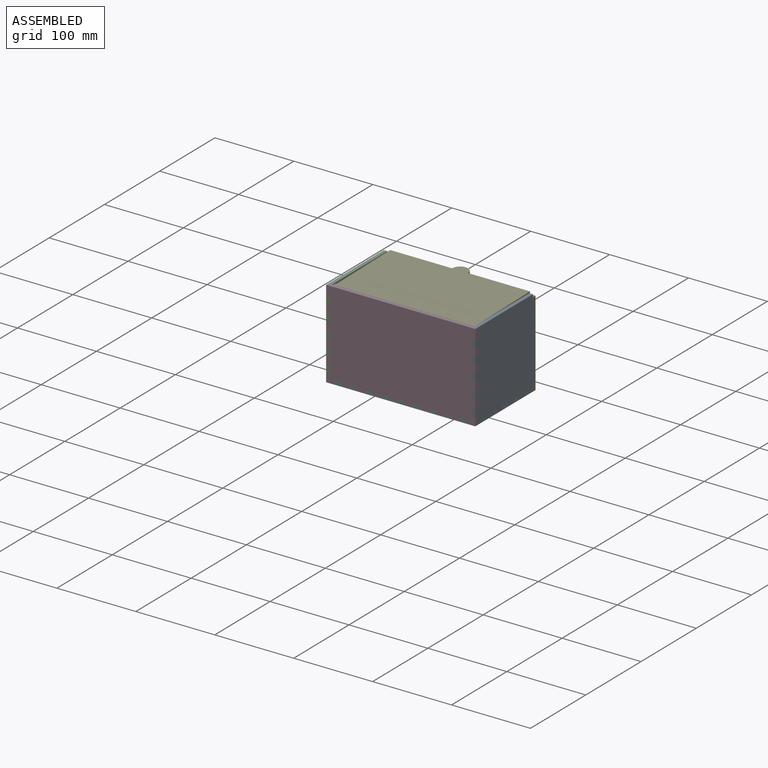
[diagram: assembled view]
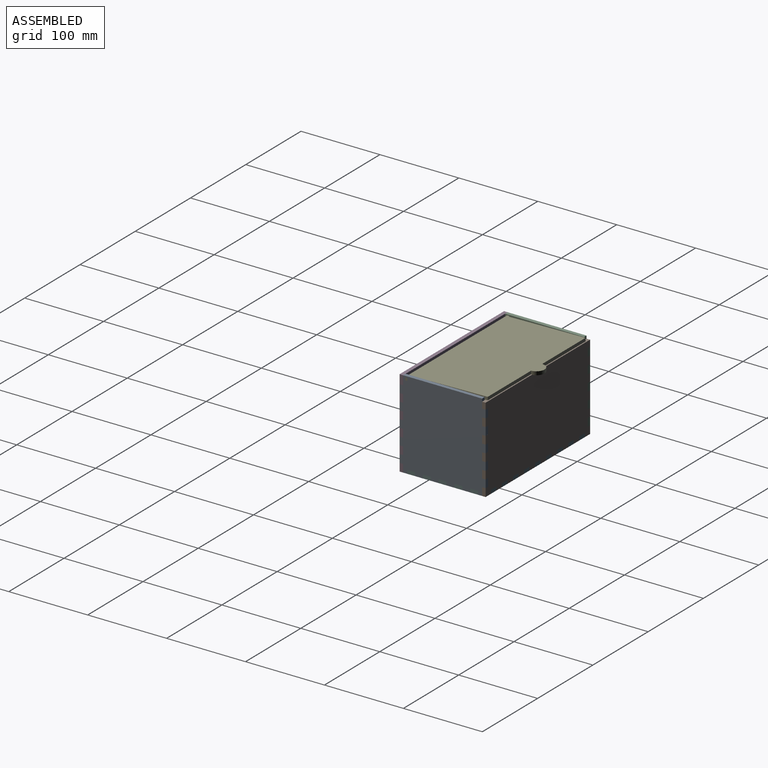
[diagram: assembled view, second angle]
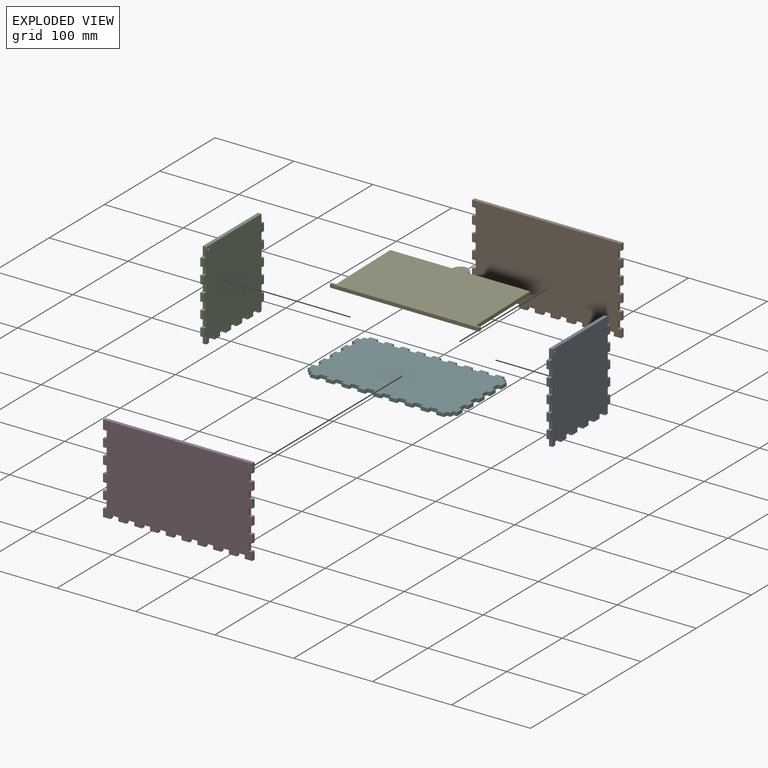
[diagram: exploded view]
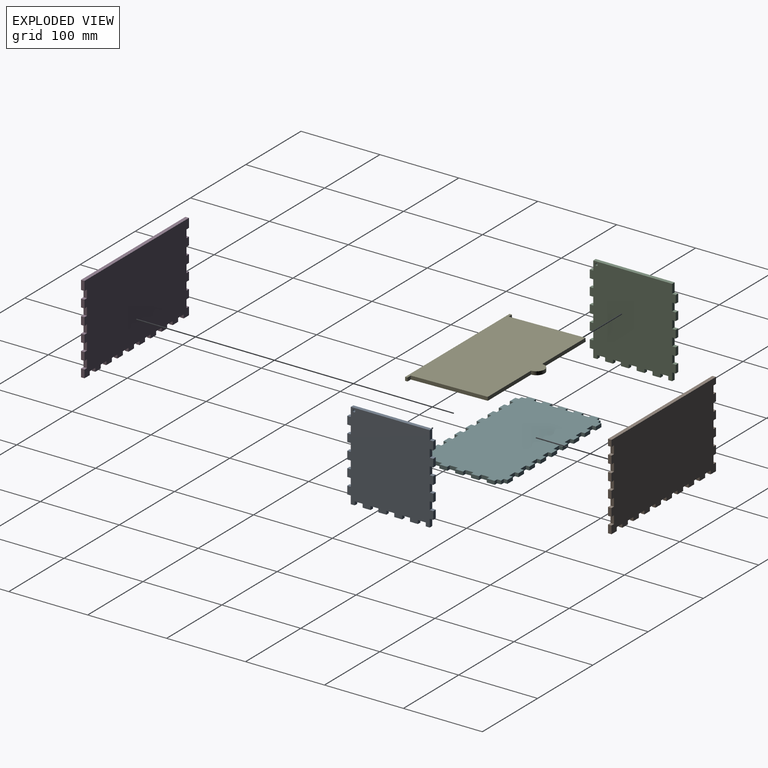
[diagram: exploded view, second angle]
ASSEMBLY  parts=6 mates=5
PART A: 67 faces, bbox 111.5x109x4.5 mm
  f0: plane 10x4.5mm, normal (0,-1,0), area 45mm2, adj f1,f64,f65,f66
  f1: plane 4.5x4.5mm, normal (-1,0,0), area 20.2mm2, adj f0,f2,f65,f66
  f2: plane 10x4.5mm, normal (0,-1,0), area 45mm2, adj f1,f3,f65,f66
  f3: plane 4.5x4.5mm, normal (1,0,0), area 20.2mm2, adj f2,f4,f65,f66
  f4: plane 10x4.5mm, normal (0,-1,0), area 45mm2, adj f3,f5,f65,f66
  f5: plane 4.5x4.5mm, normal (-1,0,0), area 20.2mm2, adj f4,f6,f65,f66
  f6: plane 10x4.5mm, normal (0,-1,0), area 45mm2, adj f5,f7,f65,f66
  f7: plane 4.5x4.5mm, normal (1,0,0), area 20.2mm2, adj f6,f8,f65,f66
  f8: plane 10x4.5mm, normal (0,-1,0), area 45mm2, adj f7,f9,f65,f66
  f9: plane 4.5x4.5mm, normal (-1,0,0), area 20.2mm2, adj f8,f10,f65,f66
  f10: plane 10x4.5mm, normal (0,-1,0), area 45mm2, adj f9,f11,f65,f66
  f11: plane 4.5x4.5mm, normal (1,0,0), area 20.2mm2, adj f10,f12,f65,f66
  f12: plane 10x4.5mm, normal (0,-1,0), area 45mm2, adj f11,f13,f65,f66
  f13: plane 4.5x4.5mm, normal (-1,0,0), area 20.2mm2, adj f12,f14,f65,f66
  f14: plane 10x4.5mm, normal (0,-1,0), area 45mm2, adj f13,f15,f65,f66
  f15: plane 4.5x4.5mm, normal (1,0,0), area 20.2mm2, adj f14,f16,f65,f66
  f16: plane 11.5x4.5mm, normal (0,-1,0), area 51.8mm2, adj f15,f17,f65,f66
  f17: plane 100x4.5mm, normal (1,0,0), area 450mm2, adj f16,f18,f65,f66
  f18: plane 11.5x4.5mm, normal (0,1,0), area 51.8mm2, adj f17,f19,f65,f66
  f19: plane 4.5x4.5mm, normal (1,0,0), area 20.2mm2, adj f18,f20,f65,f66
  f20: plane 10x4.5mm, normal (0,1,0), area 45mm2, adj f19,f21,f65,f66
  f21: plane 4.5x4.5mm, normal (-1,0,0), area 20.2mm2, adj f20,f22,f65,f66
  f22: plane 10x4.5mm, normal (0,1,0), area 45mm2, adj f21,f23,f65,f66
  f23: plane 4.5x4.5mm, normal (1,0,0), area 20.2mm2, adj f22,f24,f65,f66
  f24: plane 10x4.5mm, normal (0,1,0), area 45mm2, adj f23,f25,f65,f66
  f25: plane 4.5x4.5mm, normal (-1,0,0), area 20.2mm2, adj f24,f26,f65,f66
  f26: plane 10x4.5mm, normal (0,1,0), area 45mm2, adj f25,f27,f65,f66
  f27: plane 4.5x4.5mm, normal (1,0,0), area 20.2mm2, adj f26,f28,f65,f66
  f28: plane 10x4.5mm, normal (0,1,0), area 45mm2, adj f27,f29,f65,f66
  f29: plane 4.5x4.5mm, normal (-1,0,0), area 20.2mm2, adj f28,f30,f65,f66
  f30: plane 10x4.5mm, normal (0,1,0), area 45mm2, adj f29,f31,f65,f66
  f31: plane 4.5x4.5mm, normal (1,0,0), area 20.2mm2, adj f30,f32,f65,f66
  f32: plane 10x4.5mm, normal (0,1,0), area 45mm2, adj f31,f33,f65,f66
  f33: plane 4.5x4.5mm, normal (-1,0,0), area 20.2mm2, adj f32,f34,f65,f66
  f34: plane 10x4.5mm, normal (0,1,0), area 45mm2, adj f33,f35,f65,f66
  f35: plane 4.5x4.5mm, normal (1,0,0), area 20.2mm2, adj f34,f36,f65,f66
  f36: plane 10x4.5mm, normal (0,1,0), area 45mm2, adj f35,f37,f65,f66
  f37: plane 4.5x4.5mm, normal (-1,0,0), area 20.2mm2, adj f36,f38,f65,f66
  f38: plane 10x4.5mm, normal (0,1,0), area 45mm2, adj f37,f39,f65,f66
  f39: plane 5x4.5mm, normal (-1,0,0), area 22.5mm2, adj f38,f40,f65,f66
  f40: plane 4.5x4.5mm, normal (0,-1,0), area 20.3mm2, adj f39,f41,f65,f66
  f41: plane 10x4.5mm, normal (-1,0,0), area 45mm2, adj f40,f42,f65,f66
  f42: plane 4.5x4.5mm, normal (0,1,0), area 20.3mm2, adj f41,f43,f65,f66
  f43: plane 10x4.5mm, normal (-1,0,0), area 45mm2, adj f42,f44,f65,f66
  f44: plane 4.5x4.5mm, normal (0,-1,0), area 20.3mm2, adj f43,f45,f65,f66
  f45: plane 10x4.5mm, normal (-1,0,0), area 45mm2, adj f44,f46,f65,f66
  f46: plane 4.5x4.5mm, normal (0,1,0), area 20.3mm2, adj f45,f47,f65,f66
  f47: plane 10x4.5mm, normal (-1,0,0), area 45mm2, adj f46,f48,f65,f66
  f48: plane 4.5x4.5mm, normal (0,-1,0), area 20.3mm2, adj f47,f49,f65,f66
  f49: plane 10x4.5mm, normal (-1,0,0), area 45mm2, adj f48,f50,f65,f66
  f50: plane 4.5x4.5mm, normal (0,1,0), area 20.3mm2, adj f49,f51,f65,f66
  f51: plane 10x4.5mm, normal (-1,0,0), area 45mm2, adj f50,f52,f65,f66
  f52: plane 4.5x4.5mm, normal (0,-1,0), area 20.3mm2, adj f51,f53,f65,f66
  f53: plane 10x4.5mm, normal (-1,0,0), area 45mm2, adj f52,f54,f65,f66
  f54: plane 4.5x4.5mm, normal (0,1,0), area 20.3mm2, adj f53,f55,f65,f66
  f55: plane 10x4.5mm, normal (-1,0,0), area 45mm2, adj f54,f56,f65,f66
  f56: plane 4.5x4.5mm, normal (0,-1,0), area 20.3mm2, adj f55,f57,f65,f66
  f57: plane 10x4.5mm, normal (-1,0,0), area 45mm2, adj f56,f58,f65,f66
  f58: plane 4.5x4.5mm, normal (0,1,0), area 20.3mm2, adj f57,f59,f65,f66
  f59: plane 5x4.5mm, normal (-1,0,0), area 22.5mm2, adj f58,f60,f65,f66
  f60: plane 10x4.5mm, normal (0,-1,0), area 45mm2, adj f59,f61,f65,f66
  f61: plane 4.5x4.5mm, normal (-1,0,0), area 20.2mm2, adj f60,f62,f65,f66
  f62: plane 10x4.5mm, normal (0,-1,0), area 45mm2, adj f61,f64,f65,f66
  f63: cylinder r=1.6mm len=4.5mm, axis (0,0,-1), area 45.2mm2, adj f65,f66
  f64: plane 4.5x4.5mm, normal (1,0,0), area 20.2mm2, adj f0,f62,f65,f66
  f65: plane 111.5x109mm, normal (0,0,1), area 11367mm2, adj f0,f1,f2,f3,f4,f5,f6,f7
  f66: plane 111.5x109mm, normal (0,0,-1), area 11367mm2, adj f0,f1,f2,f3,f4,f5,f6,f7
PART B: 82 faces, bbox 189x108x4.5 mm
  f0: plane 10x4.5mm, normal (0,-1,0), area 45mm2, adj f1,f79,f80,f81
  f1: plane 4.5x4.5mm, normal (-1,0,0), area 20.3mm2, adj f0,f2,f80,f81
  f2: plane 10x4.5mm, normal (0,-1,0), area 45mm2, adj f1,f3,f80,f81
  f3: plane 4.5x4.5mm, normal (1,0,0), area 20.3mm2, adj f2,f4,f80,f81
  f4: plane 10x4.5mm, normal (0,-1,0), area 45mm2, adj f3,f5,f80,f81
  f5: plane 4.5x4.5mm, normal (-1,0,0), area 20.3mm2, adj f4,f6,f80,f81
  f6: plane 10x4.5mm, normal (0,-1,0), area 45mm2, adj f5,f7,f80,f81
  f7: plane 4.5x4.5mm, normal (1,0,0), area 20.3mm2, adj f6,f8,f80,f81
  f8: plane 10x4.5mm, normal (0,-1,0), area 45mm2, adj f7,f9,f80,f81
  f9: plane 4.5x4.5mm, normal (-1,0,0), area 20.3mm2, adj f8,f10,f80,f81
  f10: plane 10x4.5mm, normal (0,-1,0), area 45mm2, adj f9,f11,f80,f81
  f11: plane 4.5x4.5mm, normal (1,0,0), area 20.3mm2, adj f10,f12,f80,f81
  f12: plane 10x4.5mm, normal (0,-1,0), area 45mm2, adj f11,f13,f80,f81
  f13: plane 4.5x4.5mm, normal (-1,0,0), area 20.3mm2, adj f12,f14,f80,f81
  f14: plane 10x4.5mm, normal (0,-1,0), area 45mm2, adj f13,f15,f80,f81
  f15: plane 4.5x4.5mm, normal (1,0,0), area 20.3mm2, adj f14,f16,f80,f81
  f16: plane 10x4.5mm, normal (0,-1,0), area 45mm2, adj f15,f17,f80,f81
  f17: plane 4.5x4.5mm, normal (-1,0,0), area 20.3mm2, adj f16,f18,f80,f81
  f18: plane 9.5x4.5mm, normal (0,-1,0), area 42.7mm2, adj f17,f19,f80,f81
  f19: plane 10x4.5mm, normal (1,0,0), area 45mm2, adj f18,f20,f80,f81
  f20: plane 4.5x4.5mm, normal (0,1,0), area 20.3mm2, adj f19,f21,f80,f81
  f21: plane 10x4.5mm, normal (1,0,0), area 45mm2, adj f20,f22,f80,f81
  f22: plane 4.5x4.5mm, normal (0,-1,0), area 20.3mm2, adj f21,f23,f80,f81
  f23: plane 10x4.5mm, normal (1,0,0), area 45mm2, adj f22,f24,f80,f81
  f24: plane 4.5x4.5mm, normal (0,1,0), area 20.3mm2, adj f23,f25,f80,f81
  f25: plane 10x4.5mm, normal (1,0,0), area 45mm2, adj f24,f26,f80,f81
  f26: plane 4.5x4.5mm, normal (0,-1,0), area 20.3mm2, adj f25,f27,f80,f81
  f27: plane 10x4.5mm, normal (1,0,0), area 45mm2, adj f26,f28,f80,f81
  f28: plane 4.5x4.5mm, normal (0,1,0), area 20.3mm2, adj f27,f29,f80,f81
  f29: plane 10x4.5mm, normal (1,0,0), area 45mm2, adj f28,f30,f80,f81
  f30: plane 4.5x4.5mm, normal (0,-1,0), area 20.3mm2, adj f29,f31,f80,f81
  f31: plane 10x4.5mm, normal (1,0,0), area 45mm2, adj f30,f32,f80,f81
  f32: plane 4.5x4.5mm, normal (0,1,0), area 20.3mm2, adj f31,f33,f80,f81
  f33: plane 10x4.5mm, normal (1,0,0), area 45mm2, adj f32,f34,f80,f81
  f34: plane 4.5x4.5mm, normal (0,-1,0), area 20.3mm2, adj f33,f35,f80,f81
  f35: plane 10x4.5mm, normal (1,0,0), area 45mm2, adj f34,f36,f80,f81
  f36: plane 4.5x4.5mm, normal (0,1,0), area 20.3mm2, adj f35,f37,f80,f81
  f37: plane 10x4.5mm, normal (1,0,0), area 45mm2, adj f36,f38,f80,f81
  f38: plane 4.5x4.5mm, normal (0,-1,0), area 20.3mm2, adj f37,f39,f80,f81
  f39: plane 8x4.5mm, normal (1,0,0), area 36mm2, adj f38,f40,f80,f81
  f40: plane 189x4.5mm, normal (0,1,0), area 850.5mm2, adj f39,f41,f80,f81
  f41: plane 8x4.5mm, normal (-1,0,0), area 36mm2, adj f40,f42,f80,f81
  f42: plane 4.5x4.5mm, normal (0,-1,0), area 20.3mm2, adj f41,f43,f80,f81
  f43: plane 10x4.5mm, normal (-1,0,0), area 45mm2, adj f42,f44,f80,f81
  f44: plane 4.5x4.5mm, normal (0,1,0), area 20.3mm2, adj f43,f45,f80,f81
  f45: plane 10x4.5mm, normal (-1,0,0), area 45mm2, adj f44,f46,f80,f81
  f46: plane 4.5x4.5mm, normal (0,-1,0), area 20.3mm2, adj f45,f47,f80,f81
  f47: plane 10x4.5mm, normal (-1,0,0), area 45mm2, adj f46,f48,f80,f81
  f48: plane 4.5x4.5mm, normal (0,1,0), area 20.3mm2, adj f47,f49,f80,f81
  f49: plane 10x4.5mm, normal (-1,0,0), area 45mm2, adj f48,f50,f80,f81
  f50: plane 4.5x4.5mm, normal (0,-1,0), area 20.3mm2, adj f49,f51,f80,f81
  f51: plane 10x4.5mm, normal (-1,0,0), area 45mm2, adj f50,f52,f80,f81
  f52: plane 4.5x4.5mm, normal (0,1,0), area 20.3mm2, adj f51,f53,f80,f81
  f53: plane 10x4.5mm, normal (-1,0,0), area 45mm2, adj f52,f54,f80,f81
  f54: plane 4.5x4.5mm, normal (0,-1,0), area 20.3mm2, adj f53,f55,f80,f81
  f55: plane 10x4.5mm, normal (-1,0,0), area 45mm2, adj f54,f56,f80,f81
  f56: plane 4.5x4.5mm, normal (0,1,0), area 20.3mm2, adj f55,f57,f80,f81
  f57: plane 10x4.5mm, normal (-1,0,0), area 45mm2, adj f56,f58,f80,f81
  f58: plane 4.5x4.5mm, normal (0,-1,0), area 20.3mm2, adj f57,f59,f80,f81
  f59: plane 10x4.5mm, normal (-1,0,0), area 45mm2, adj f58,f60,f80,f81
  f60: plane 4.5x4.5mm, normal (0,1,0), area 20.3mm2, adj f59,f61,f80,f81
  f61: plane 10x4.5mm, normal (-1,0,0), area 45mm2, adj f60,f62,f80,f81
  f62: plane 9.5x4.5mm, normal (0,-1,0), area 42.7mm2, adj f61,f63,f80,f81
  f63: plane 4.5x4.5mm, normal (1,0,0), area 20.3mm2, adj f62,f64,f80,f81
  f64: plane 10x4.5mm, normal (0,-1,0), area 45mm2, adj f63,f65,f80,f81
  f65: plane 4.5x4.5mm, normal (-1,0,0), area 20.3mm2, adj f64,f66,f80,f81
  f66: plane 10x4.5mm, normal (0,-1,0), area 45mm2, adj f65,f67,f80,f81
  f67: plane 4.5x4.5mm, normal (1,0,0), area 20.3mm2, adj f66,f68,f80,f81
  f68: plane 10x4.5mm, normal (0,-1,0), area 45mm2, adj f67,f69,f80,f81
  f69: plane 4.5x4.5mm, normal (-1,0,0), area 20.3mm2, adj f68,f70,f80,f81
  f70: plane 10x4.5mm, normal (0,-1,0), area 45mm2, adj f69,f71,f80,f81
  f71: plane 4.5x4.5mm, normal (1,0,0), area 20.3mm2, adj f70,f72,f80,f81
  f72: plane 10x4.5mm, normal (0,-1,0), area 45mm2, adj f71,f73,f80,f81
  f73: plane 4.5x4.5mm, normal (-1,0,0), area 20.3mm2, adj f72,f74,f80,f81
  f74: plane 10x4.5mm, normal (0,-1,0), area 45mm2, adj f73,f75,f80,f81
  f75: plane 4.5x4.5mm, normal (1,0,0), area 20.3mm2, adj f74,f76,f80,f81
  f76: plane 10x4.5mm, normal (0,-1,0), area 45mm2, adj f75,f77,f80,f81
  f77: plane 4.5x4.5mm, normal (-1,0,0), area 20.3mm2, adj f76,f78,f80,f81
  f78: plane 10x4.5mm, normal (0,-1,0), area 45mm2, adj f77,f79,f80,f81
  f79: plane 4.5x4.5mm, normal (1,0,0), area 20.3mm2, adj f0,f78,f80,f81
  f80: plane 189x108mm, normal (0,0,1), area 19557mm2, adj f0,f1,f2,f3,f4,f5,f6,f7
  f81: plane 189x108mm, normal (0,0,-1), area 19557mm2, adj f0,f1,f2,f3,f4,f5,f6,f7
PART C: 67 faces, bbox 111.5x109x4.5 mm
  f0: plane 10x4.5mm, normal (1,0,0), area 45mm2, adj f1,f64,f65,f66
  f1: plane 4.5x4.5mm, normal (0,1,0), area 20.3mm2, adj f0,f2,f65,f66
  f2: plane 10x4.5mm, normal (1,0,0), area 45mm2, adj f1,f3,f65,f66
  f3: plane 4.5x4.5mm, normal (0,-1,0), area 20.3mm2, adj f2,f4,f65,f66
  f4: plane 10x4.5mm, normal (1,0,0), area 45mm2, adj f3,f5,f65,f66
  f5: plane 4.5x4.5mm, normal (0,1,0), area 20.3mm2, adj f4,f6,f65,f66
  f6: plane 10x4.5mm, normal (1,0,0), area 45mm2, adj f5,f7,f65,f66
  f7: plane 4.5x4.5mm, normal (0,-1,0), area 20.3mm2, adj f6,f8,f65,f66
  f8: plane 5x4.5mm, normal (1,0,0), area 22.5mm2, adj f7,f9,f65,f66
  f9: plane 10x4.5mm, normal (0,1,0), area 45mm2, adj f8,f10,f65,f66
  f10: plane 4.5x4.5mm, normal (1,0,0), area 20.2mm2, adj f9,f11,f65,f66
  f11: plane 10x4.5mm, normal (0,1,0), area 45mm2, adj f10,f12,f65,f66
  f12: plane 4.5x4.5mm, normal (-1,0,0), area 20.2mm2, adj f11,f13,f65,f66
  f13: plane 10x4.5mm, normal (0,1,0), area 45mm2, adj f12,f14,f65,f66
  f14: plane 4.5x4.5mm, normal (1,0,0), area 20.2mm2, adj f13,f15,f65,f66
  f15: plane 10x4.5mm, normal (0,1,0), area 45mm2, adj f14,f16,f65,f66
  f16: plane 4.5x4.5mm, normal (-1,0,0), area 20.2mm2, adj f15,f17,f65,f66
  f17: plane 10x4.5mm, normal (0,1,0), area 45mm2, adj f16,f18,f65,f66
  f18: plane 4.5x4.5mm, normal (1,0,0), area 20.2mm2, adj f17,f19,f65,f66
  f19: plane 10x4.5mm, normal (0,1,0), area 45mm2, adj f18,f20,f65,f66
  f20: plane 4.5x4.5mm, normal (-1,0,0), area 20.2mm2, adj f19,f21,f65,f66
  f21: plane 10x4.5mm, normal (0,1,0), area 45mm2, adj f20,f22,f65,f66
  f22: plane 4.5x4.5mm, normal (1,0,0), area 20.2mm2, adj f21,f23,f65,f66
  f23: plane 10x4.5mm, normal (0,1,0), area 45mm2, adj f22,f24,f65,f66
  f24: plane 4.5x4.5mm, normal (-1,0,0), area 20.2mm2, adj f23,f25,f65,f66
  f25: plane 10x4.5mm, normal (0,1,0), area 45mm2, adj f24,f26,f65,f66
  f26: plane 4.5x4.5mm, normal (1,0,0), area 20.2mm2, adj f25,f27,f65,f66
  f27: plane 10x4.5mm, normal (0,1,0), area 45mm2, adj f26,f28,f65,f66
  f28: plane 4.5x4.5mm, normal (-1,0,0), area 20.2mm2, adj f27,f29,f65,f66
  f29: plane 11.5x4.5mm, normal (0,1,0), area 51.8mm2, adj f28,f30,f65,f66
  f30: plane 100x4.5mm, normal (-1,0,0), area 450mm2, adj f29,f31,f65,f66
  f31: plane 11.5x4.5mm, normal (0,-1,0), area 51.8mm2, adj f30,f32,f65,f66
  f32: plane 4.5x4.5mm, normal (-1,0,0), area 20.2mm2, adj f31,f33,f65,f66
  f33: plane 10x4.5mm, normal (0,-1,0), area 45mm2, adj f32,f34,f65,f66
  f34: plane 4.5x4.5mm, normal (1,0,0), area 20.2mm2, adj f33,f35,f65,f66
  f35: plane 10x4.5mm, normal (0,-1,0), area 45mm2, adj f34,f36,f65,f66
  f36: plane 4.5x4.5mm, normal (-1,0,0), area 20.2mm2, adj f35,f37,f65,f66
  f37: plane 10x4.5mm, normal (0,-1,0), area 45mm2, adj f36,f38,f65,f66
  f38: plane 4.5x4.5mm, normal (1,0,0), area 20.2mm2, adj f37,f39,f65,f66
  f39: plane 10x4.5mm, normal (0,-1,0), area 45mm2, adj f38,f40,f65,f66
  f40: plane 4.5x4.5mm, normal (-1,0,0), area 20.2mm2, adj f39,f41,f65,f66
  f41: plane 10x4.5mm, normal (0,-1,0), area 45mm2, adj f40,f42,f65,f66
  f42: plane 4.5x4.5mm, normal (1,0,0), area 20.2mm2, adj f41,f43,f65,f66
  f43: plane 10x4.5mm, normal (0,-1,0), area 45mm2, adj f42,f44,f65,f66
  f44: plane 4.5x4.5mm, normal (-1,0,0), area 20.2mm2, adj f43,f45,f65,f66
  f45: plane 10x4.5mm, normal (0,-1,0), area 45mm2, adj f44,f46,f65,f66
  f46: plane 4.5x4.5mm, normal (1,0,0), area 20.2mm2, adj f45,f47,f65,f66
  f47: plane 10x4.5mm, normal (0,-1,0), area 45mm2, adj f46,f48,f65,f66
  f48: plane 4.5x4.5mm, normal (-1,0,0), area 20.2mm2, adj f47,f49,f65,f66
  f49: plane 10x4.5mm, normal (0,-1,0), area 45mm2, adj f48,f50,f65,f66
  f50: plane 4.5x4.5mm, normal (1,0,0), area 20.2mm2, adj f49,f51,f65,f66
  f51: plane 10x4.5mm, normal (0,-1,0), area 45mm2, adj f50,f52,f65,f66
  f52: plane 5x4.5mm, normal (1,0,0), area 22.5mm2, adj f51,f53,f65,f66
  f53: plane 4.5x4.5mm, normal (0,1,0), area 20.3mm2, adj f52,f54,f65,f66
  f54: plane 10x4.5mm, normal (1,0,0), area 45mm2, adj f53,f55,f65,f66
  f55: plane 4.5x4.5mm, normal (0,-1,0), area 20.3mm2, adj f54,f56,f65,f66
  f56: plane 10x4.5mm, normal (1,0,0), area 45mm2, adj f55,f57,f65,f66
  f57: plane 4.5x4.5mm, normal (0,1,0), area 20.3mm2, adj f56,f58,f65,f66
  f58: plane 10x4.5mm, normal (1,0,0), area 45mm2, adj f57,f59,f65,f66
  f59: plane 4.5x4.5mm, normal (0,-1,0), area 20.3mm2, adj f58,f60,f65,f66
  f60: plane 10x4.5mm, normal (1,0,0), area 45mm2, adj f59,f61,f65,f66
  f61: plane 4.5x4.5mm, normal (0,1,0), area 20.3mm2, adj f60,f62,f65,f66
  f62: plane 10x4.5mm, normal (1,0,0), area 45mm2, adj f61,f64,f65,f66
  f63: cylinder r=1.6mm len=4.5mm, axis (0,0,-1), area 45.2mm2, adj f65,f66
  f64: plane 4.5x4.5mm, normal (0,-1,0), area 20.3mm2, adj f0,f62,f65,f66
  f65: plane 111.5x109mm, normal (0,0,1), area 11367mm2, adj f0,f1,f2,f3,f4,f5,f6,f7
  f66: plane 111.5x109mm, normal (0,0,-1), area 11367mm2, adj f0,f1,f2,f3,f4,f5,f6,f7
PART D: 82 faces, bbox 189x111.5x4.5 mm
  f0: plane 4.5x4.5mm, normal (0,1,0), area 20.3mm2, adj f1,f79,f80,f81
  f1: plane 10x4.5mm, normal (-1,0,0), area 45mm2, adj f0,f2,f80,f81
  f2: plane 4.5x4.5mm, normal (0,-1,0), area 20.3mm2, adj f1,f3,f80,f81
  f3: plane 10x4.5mm, normal (-1,0,0), area 45mm2, adj f2,f4,f80,f81
  f4: plane 4.5x4.5mm, normal (0,1,0), area 20.3mm2, adj f3,f5,f80,f81
  f5: plane 10x4.5mm, normal (-1,0,0), area 45mm2, adj f4,f6,f80,f81
  f6: plane 4.5x4.5mm, normal (0,-1,0), area 20.3mm2, adj f5,f7,f80,f81
  f7: plane 10x4.5mm, normal (-1,0,0), area 45mm2, adj f6,f8,f80,f81
  f8: plane 4.5x4.5mm, normal (0,1,0), area 20.3mm2, adj f7,f9,f80,f81
  f9: plane 10x4.5mm, normal (-1,0,0), area 45mm2, adj f8,f10,f80,f81
  f10: plane 4.5x4.5mm, normal (0,-1,0), area 20.3mm2, adj f9,f11,f80,f81
  f11: plane 10x4.5mm, normal (-1,0,0), area 45mm2, adj f10,f12,f80,f81
  f12: plane 4.5x4.5mm, normal (0,1,0), area 20.3mm2, adj f11,f13,f80,f81
  f13: plane 10x4.5mm, normal (-1,0,0), area 45mm2, adj f12,f14,f80,f81
  f14: plane 4.5x4.5mm, normal (0,-1,0), area 20.3mm2, adj f13,f15,f80,f81
  f15: plane 10x4.5mm, normal (-1,0,0), area 45mm2, adj f14,f16,f80,f81
  f16: plane 4.5x4.5mm, normal (0,1,0), area 20.3mm2, adj f15,f17,f80,f81
  f17: plane 11.5x4.5mm, normal (-1,0,0), area 51.8mm2, adj f16,f18,f80,f81
  f18: plane 189x4.5mm, normal (0,-1,0), area 850.5mm2, adj f17,f19,f80,f81
  f19: plane 11.5x4.5mm, normal (1,0,0), area 51.8mm2, adj f18,f20,f80,f81
  f20: plane 4.5x4.5mm, normal (0,1,0), area 20.3mm2, adj f19,f21,f80,f81
  f21: plane 10x4.5mm, normal (1,0,0), area 45mm2, adj f20,f22,f80,f81
  f22: plane 4.5x4.5mm, normal (0,-1,0), area 20.3mm2, adj f21,f23,f80,f81
  f23: plane 10x4.5mm, normal (1,0,0), area 45mm2, adj f22,f24,f80,f81
  f24: plane 4.5x4.5mm, normal (0,1,0), area 20.3mm2, adj f23,f25,f80,f81
  f25: plane 10x4.5mm, normal (1,0,0), area 45mm2, adj f24,f26,f80,f81
  f26: plane 4.5x4.5mm, normal (0,-1,0), area 20.3mm2, adj f25,f27,f80,f81
  f27: plane 10x4.5mm, normal (1,0,0), area 45mm2, adj f26,f28,f80,f81
  f28: plane 4.5x4.5mm, normal (0,1,0), area 20.3mm2, adj f27,f29,f80,f81
  f29: plane 10x4.5mm, normal (1,0,0), area 45mm2, adj f28,f30,f80,f81
  f30: plane 4.5x4.5mm, normal (0,-1,0), area 20.3mm2, adj f29,f31,f80,f81
  f31: plane 10x4.5mm, normal (1,0,0), area 45mm2, adj f30,f32,f80,f81
  f32: plane 4.5x4.5mm, normal (0,1,0), area 20.3mm2, adj f31,f33,f80,f81
  f33: plane 10x4.5mm, normal (1,0,0), area 45mm2, adj f32,f34,f80,f81
  f34: plane 4.5x4.5mm, normal (0,-1,0), area 20.3mm2, adj f33,f35,f80,f81
  f35: plane 10x4.5mm, normal (1,0,0), area 45mm2, adj f34,f36,f80,f81
  f36: plane 4.5x4.5mm, normal (0,1,0), area 20.3mm2, adj f35,f37,f80,f81
  f37: plane 10x4.5mm, normal (1,0,0), area 45mm2, adj f36,f38,f80,f81
  f38: plane 4.5x4.5mm, normal (0,-1,0), area 20.3mm2, adj f37,f39,f80,f81
  f39: plane 10x4.5mm, normal (1,0,0), area 45mm2, adj f38,f40,f80,f81
  f40: plane 9.5x4.5mm, normal (0,1,0), area 42.7mm2, adj f39,f41,f80,f81
  f41: plane 4.5x4.5mm, normal (-1,0,0), area 20.3mm2, adj f40,f42,f80,f81
  f42: plane 10x4.5mm, normal (0,1,0), area 45mm2, adj f41,f43,f80,f81
  f43: plane 4.5x4.5mm, normal (1,0,0), area 20.3mm2, adj f42,f44,f80,f81
  f44: plane 10x4.5mm, normal (0,1,0), area 45mm2, adj f43,f45,f80,f81
  f45: plane 4.5x4.5mm, normal (-1,0,0), area 20.3mm2, adj f44,f46,f80,f81
  f46: plane 10x4.5mm, normal (0,1,0), area 45mm2, adj f45,f47,f80,f81
  f47: plane 4.5x4.5mm, normal (1,0,0), area 20.3mm2, adj f46,f48,f80,f81
  f48: plane 10x4.5mm, normal (0,1,0), area 45mm2, adj f47,f49,f80,f81
  f49: plane 4.5x4.5mm, normal (-1,0,0), area 20.3mm2, adj f48,f50,f80,f81
  f50: plane 10x4.5mm, normal (0,1,0), area 45mm2, adj f49,f51,f80,f81
  f51: plane 4.5x4.5mm, normal (1,0,0), area 20.3mm2, adj f50,f52,f80,f81
  f52: plane 10x4.5mm, normal (0,1,0), area 45mm2, adj f51,f53,f80,f81
  f53: plane 4.5x4.5mm, normal (-1,0,0), area 20.3mm2, adj f52,f54,f80,f81
  f54: plane 10x4.5mm, normal (0,1,0), area 45mm2, adj f53,f55,f80,f81
  f55: plane 4.5x4.5mm, normal (1,0,0), area 20.3mm2, adj f54,f56,f80,f81
  f56: plane 10x4.5mm, normal (0,1,0), area 45mm2, adj f55,f57,f80,f81
  f57: plane 4.5x4.5mm, normal (-1,0,0), area 20.3mm2, adj f56,f58,f80,f81
  f58: plane 10x4.5mm, normal (0,1,0), area 45mm2, adj f57,f59,f80,f81
  f59: plane 4.5x4.5mm, normal (1,0,0), area 20.3mm2, adj f58,f60,f80,f81
  f60: plane 10x4.5mm, normal (0,1,0), area 45mm2, adj f59,f61,f80,f81
  f61: plane 4.5x4.5mm, normal (-1,0,0), area 20.3mm2, adj f60,f62,f80,f81
  f62: plane 10x4.5mm, normal (0,1,0), area 45mm2, adj f61,f63,f80,f81
  f63: plane 4.5x4.5mm, normal (1,0,0), area 20.3mm2, adj f62,f64,f80,f81
  f64: plane 10x4.5mm, normal (0,1,0), area 45mm2, adj f63,f65,f80,f81
  f65: plane 4.5x4.5mm, normal (-1,0,0), area 20.3mm2, adj f64,f66,f80,f81
  f66: plane 10x4.5mm, normal (0,1,0), area 45mm2, adj f65,f67,f80,f81
  f67: plane 4.5x4.5mm, normal (1,0,0), area 20.3mm2, adj f66,f68,f80,f81
  f68: plane 10x4.5mm, normal (0,1,0), area 45mm2, adj f67,f69,f80,f81
  f69: plane 4.5x4.5mm, normal (-1,0,0), area 20.3mm2, adj f68,f70,f80,f81
  f70: plane 10x4.5mm, normal (0,1,0), area 45mm2, adj f69,f71,f80,f81
  f71: plane 4.5x4.5mm, normal (1,0,0), area 20.3mm2, adj f70,f72,f80,f81
  f72: plane 10x4.5mm, normal (0,1,0), area 45mm2, adj f71,f73,f80,f81
  f73: plane 4.5x4.5mm, normal (-1,0,0), area 20.3mm2, adj f72,f74,f80,f81
  f74: plane 10x4.5mm, normal (0,1,0), area 45mm2, adj f73,f75,f80,f81
  f75: plane 4.5x4.5mm, normal (1,0,0), area 20.3mm2, adj f74,f76,f80,f81
  f76: plane 9.5x4.5mm, normal (0,1,0), area 42.7mm2, adj f75,f77,f80,f81
  f77: plane 10x4.5mm, normal (-1,0,0), area 45mm2, adj f76,f78,f80,f81
  f78: plane 4.5x4.5mm, normal (0,-1,0), area 20.3mm2, adj f77,f79,f80,f81
  f79: plane 10x4.5mm, normal (-1,0,0), area 45mm2, adj f0,f78,f80,f81
  f80: plane 189x111.5mm, normal (0,0,1), area 20218.5mm2, adj f0,f1,f2,f3,f4,f5,f6,f7
  f81: plane 189x111.5mm, normal (0,0,-1), area 20218.5mm2, adj f0,f1,f2,f3,f4,f5,f6,f7
PART E: 12 faces, bbox 189x110.5x4.5 mm
  f0: plane 189x4.5mm, normal (0,1,0), area 850.5mm2, adj f1,f9,f10,f11
  f1: plane 4.5x3mm, normal (-1,0,0), area 13.5mm2, adj f0,f2,f10,f11
  f2: plane 6x4.5mm, normal (0,-1,0), area 27mm2, adj f1,f3,f10,f11
  f3: plane 97.5x4.5mm, normal (-1,0,0), area 438.7mm2, adj f2,f4,f10,f11
  f4: plane 78.5x4.5mm, normal (0,-1,0), area 353.3mm2, adj f3,f5,f10,f11
  f5: cylinder r=10mm len=20mm, axis (0,0,-1), area 141.4mm2, adj f4,f6,f10,f11
  f6: plane 78.5x4.5mm, normal (0,-1,0), area 353.2mm2, adj f5,f7,f10,f11
  f7: plane 97.5x4.5mm, normal (1,0,0), area 438.7mm2, adj f6,f8,f10,f11
  f8: plane 6x4.5mm, normal (0,-1,0), area 27mm2, adj f7,f9,f10,f11
  f9: plane 4.5x3mm, normal (1,0,0), area 13.5mm2, adj f0,f8,f10,f11
  f10: plane 189x110.5mm, normal (0,0,1), area 17981.6mm2, adj f0,f1,f2,f3,f4,f5,f6,f7
  f11: plane 189x110.5mm, normal (0,0,-1), area 17981.6mm2, adj f0,f1,f2,f3,f4,f5,f6,f7
PART F: 118 faces, bbox 189x109x4.5 mm
  f0: plane 10x4.5mm, normal (0,-1,0), area 45mm2, adj f1,f115,f116,f117
  f1: plane 4.5x4.5mm, normal (1,0,0), area 20.2mm2, adj f0,f2,f116,f117
  f2: plane 10x4.5mm, normal (0,-1,0), area 45mm2, adj f1,f3,f116,f117
  f3: plane 4.5x4.5mm, normal (-1,0,0), area 20.2mm2, adj f2,f4,f116,f117
  f4: plane 10x4.5mm, normal (0,-1,0), area 45mm2, adj f3,f5,f116,f117
  f5: plane 4.5x4.5mm, normal (1,0,0), area 20.2mm2, adj f4,f6,f116,f117
  f6: plane 10x4.5mm, normal (0,-1,0), area 45mm2, adj f5,f7,f116,f117
  f7: plane 4.5x4.5mm, normal (-1,0,0), area 20.2mm2, adj f6,f8,f116,f117
  f8: plane 10x4.5mm, normal (0,-1,0), area 45mm2, adj f7,f9,f116,f117
  f9: plane 4.5x4.5mm, normal (1,0,0), area 20.2mm2, adj f8,f10,f116,f117
  f10: plane 5x4.5mm, normal (0,-1,0), area 22.5mm2, adj f9,f11,f116,f117
  f11: plane 5x4.5mm, normal (1,0,0), area 22.5mm2, adj f10,f12,f116,f117
  f12: plane 4.5x4.5mm, normal (0,-1,0), area 20.3mm2, adj f11,f13,f116,f117
  f13: plane 10x4.5mm, normal (1,0,0), area 45mm2, adj f12,f14,f116,f117
  f14: plane 4.5x4.5mm, normal (0,1,0), area 20.3mm2, adj f13,f15,f116,f117
  f15: plane 10x4.5mm, normal (1,0,0), area 45mm2, adj f14,f16,f116,f117
  f16: plane 4.5x4.5mm, normal (0,-1,0), area 20.3mm2, adj f15,f17,f116,f117
  f17: plane 10x4.5mm, normal (1,0,0), area 45mm2, adj f16,f18,f116,f117
  f18: plane 4.5x4.5mm, normal (0,1,0), area 20.3mm2, adj f17,f19,f116,f117
  f19: plane 10x4.5mm, normal (1,0,0), area 45mm2, adj f18,f20,f116,f117
  f20: plane 4.5x4.5mm, normal (0,-1,0), area 20.3mm2, adj f19,f21,f116,f117
  f21: plane 10x4.5mm, normal (1,0,0), area 45mm2, adj f20,f22,f116,f117
  f22: plane 4.5x4.5mm, normal (0,1,0), area 20.3mm2, adj f21,f23,f116,f117
  f23: plane 10x4.5mm, normal (1,0,0), area 45mm2, adj f22,f24,f116,f117
  f24: plane 4.5x4.5mm, normal (0,-1,0), area 20.3mm2, adj f23,f25,f116,f117
  f25: plane 10x4.5mm, normal (1,0,0), area 45mm2, adj f24,f26,f116,f117
  f26: plane 4.5x4.5mm, normal (0,1,0), area 20.3mm2, adj f25,f27,f116,f117
  f27: plane 10x4.5mm, normal (1,0,0), area 45mm2, adj f26,f28,f116,f117
  f28: plane 4.5x4.5mm, normal (0,-1,0), area 20.3mm2, adj f27,f29,f116,f117
  f29: plane 10x4.5mm, normal (1,0,0), area 45mm2, adj f28,f30,f116,f117
  f30: plane 4.5x4.5mm, normal (0,1,0), area 20.3mm2, adj f29,f31,f116,f117
  f31: plane 5x4.5mm, normal (1,0,0), area 22.5mm2, adj f30,f32,f116,f117
  f32: plane 5x4.5mm, normal (0,1,0), area 22.5mm2, adj f31,f33,f116,f117
  f33: plane 4.5x4.5mm, normal (1,0,0), area 20.2mm2, adj f32,f34,f116,f117
  f34: plane 10x4.5mm, normal (0,1,0), area 45mm2, adj f33,f35,f116,f117
  f35: plane 4.5x4.5mm, normal (-1,0,0), area 20.2mm2, adj f34,f36,f116,f117
  f36: plane 10x4.5mm, normal (0,1,0), area 45mm2, adj f35,f37,f116,f117
  f37: plane 4.5x4.5mm, normal (1,0,0), area 20.2mm2, adj f36,f38,f116,f117
  f38: plane 10x4.5mm, normal (0,1,0), area 45mm2, adj f37,f39,f116,f117
  f39: plane 4.5x4.5mm, normal (-1,0,0), area 20.2mm2, adj f38,f40,f116,f117
  f40: plane 10x4.5mm, normal (0,1,0), area 45mm2, adj f39,f41,f116,f117
  f41: plane 4.5x4.5mm, normal (1,0,0), area 20.2mm2, adj f40,f42,f116,f117
  f42: plane 10x4.5mm, normal (0,1,0), area 45mm2, adj f41,f43,f116,f117
  f43: plane 4.5x4.5mm, normal (-1,0,0), area 20.2mm2, adj f42,f44,f116,f117
  f44: plane 10x4.5mm, normal (0,1,0), area 45mm2, adj f43,f45,f116,f117
  f45: plane 4.5x4.5mm, normal (1,0,0), area 20.2mm2, adj f44,f46,f116,f117
  f46: plane 10x4.5mm, normal (0,1,0), area 45mm2, adj f45,f47,f116,f117
  f47: plane 4.5x4.5mm, normal (-1,0,0), area 20.2mm2, adj f46,f48,f116,f117
  f48: plane 10x4.5mm, normal (0,1,0), area 45mm2, adj f47,f49,f116,f117
  f49: plane 4.5x4.5mm, normal (1,0,0), area 20.2mm2, adj f48,f50,f116,f117
  f50: plane 10x4.5mm, normal (0,1,0), area 45mm2, adj f49,f51,f116,f117
  f51: plane 4.5x4.5mm, normal (-1,0,0), area 20.2mm2, adj f50,f52,f116,f117
  f52: plane 10x4.5mm, normal (0,1,0), area 45mm2, adj f51,f53,f116,f117
  f53: plane 4.5x4.5mm, normal (1,0,0), area 20.2mm2, adj f52,f54,f116,f117
  f54: plane 10x4.5mm, normal (0,1,0), area 45mm2, adj f53,f55,f116,f117
  f55: plane 4.5x4.5mm, normal (-1,0,0), area 20.2mm2, adj f54,f56,f116,f117
  f56: plane 10x4.5mm, normal (0,1,0), area 45mm2, adj f55,f57,f116,f117
  f57: plane 4.5x4.5mm, normal (1,0,0), area 20.2mm2, adj f56,f58,f116,f117
  f58: plane 10x4.5mm, normal (0,1,0), area 45mm2, adj f57,f59,f116,f117
  f59: plane 4.5x4.5mm, normal (-1,0,0), area 20.2mm2, adj f58,f60,f116,f117
  f60: plane 10x4.5mm, normal (0,1,0), area 45mm2, adj f59,f61,f116,f117
  f61: plane 4.5x4.5mm, normal (1,0,0), area 20.2mm2, adj f60,f62,f116,f117
  f62: plane 10x4.5mm, normal (0,1,0), area 45mm2, adj f61,f63,f116,f117
  f63: plane 4.5x4.5mm, normal (-1,0,0), area 20.2mm2, adj f62,f64,f116,f117
  f64: plane 10x4.5mm, normal (0,1,0), area 45mm2, adj f63,f65,f116,f117
  f65: plane 4.5x4.5mm, normal (1,0,0), area 20.2mm2, adj f64,f66,f116,f117
  f66: plane 10x4.5mm, normal (0,1,0), area 45mm2, adj f65,f67,f116,f117
  f67: plane 4.5x4.5mm, normal (-1,0,0), area 20.2mm2, adj f66,f68,f116,f117
  f68: plane 5x4.5mm, normal (0,1,0), area 22.5mm2, adj f67,f69,f116,f117
  f69: plane 5x4.5mm, normal (-1,0,0), area 22.5mm2, adj f68,f70,f116,f117
  f70: plane 4.5x4.5mm, normal (0,1,0), area 20.3mm2, adj f69,f71,f116,f117
  f71: plane 10x4.5mm, normal (-1,0,0), area 45mm2, adj f70,f72,f116,f117
  f72: plane 4.5x4.5mm, normal (0,-1,0), area 20.3mm2, adj f71,f73,f116,f117
  f73: plane 10x4.5mm, normal (-1,0,0), area 45mm2, adj f72,f74,f116,f117
  f74: plane 4.5x4.5mm, normal (0,1,0), area 20.3mm2, adj f73,f75,f116,f117
  f75: plane 10x4.5mm, normal (-1,0,0), area 45mm2, adj f74,f76,f116,f117
  f76: plane 4.5x4.5mm, normal (0,-1,0), area 20.3mm2, adj f75,f77,f116,f117
  f77: plane 10x4.5mm, normal (-1,0,0), area 45mm2, adj f76,f78,f116,f117
  f78: plane 4.5x4.5mm, normal (0,1,0), area 20.3mm2, adj f77,f79,f116,f117
  f79: plane 10x4.5mm, normal (-1,0,0), area 45mm2, adj f78,f80,f116,f117
  f80: plane 4.5x4.5mm, normal (0,-1,0), area 20.3mm2, adj f79,f81,f116,f117
  f81: plane 10x4.5mm, normal (-1,0,0), area 45mm2, adj f80,f82,f116,f117
  f82: plane 4.5x4.5mm, normal (0,1,0), area 20.3mm2, adj f81,f83,f116,f117
  f83: plane 10x4.5mm, normal (-1,0,0), area 45mm2, adj f82,f84,f116,f117
  f84: plane 4.5x4.5mm, normal (0,-1,0), area 20.3mm2, adj f83,f85,f116,f117
  f85: plane 10x4.5mm, normal (-1,0,0), area 45mm2, adj f84,f86,f116,f117
  f86: plane 4.5x4.5mm, normal (0,1,0), area 20.3mm2, adj f85,f87,f116,f117
  f87: plane 10x4.5mm, normal (-1,0,0), area 45mm2, adj f86,f88,f116,f117
  f88: plane 4.5x4.5mm, normal (0,-1,0), area 20.3mm2, adj f87,f89,f116,f117
  f89: plane 5x4.5mm, normal (-1,0,0), area 22.5mm2, adj f88,f90,f116,f117
  f90: plane 5x4.5mm, normal (0,-1,0), area 22.5mm2, adj f89,f91,f116,f117
  f91: plane 4.5x4.5mm, normal (-1,0,0), area 20.2mm2, adj f90,f92,f116,f117
  f92: plane 10x4.5mm, normal (0,-1,0), area 45mm2, adj f91,f93,f116,f117
  f93: plane 4.5x4.5mm, normal (1,0,0), area 20.2mm2, adj f92,f94,f116,f117
  f94: plane 10x4.5mm, normal (0,-1,0), area 45mm2, adj f93,f95,f116,f117
  f95: plane 4.5x4.5mm, normal (-1,0,0), area 20.2mm2, adj f94,f96,f116,f117
  f96: plane 10x4.5mm, normal (0,-1,0), area 45mm2, adj f95,f97,f116,f117
  f97: plane 4.5x4.5mm, normal (1,0,0), area 20.2mm2, adj f96,f98,f116,f117
  f98: plane 10x4.5mm, normal (0,-1,0), area 45mm2, adj f97,f99,f116,f117
  f99: plane 4.5x4.5mm, normal (-1,0,0), area 20.2mm2, adj f98,f100,f116,f117
  f100: plane 10x4.5mm, normal (0,-1,0), area 45mm2, adj f99,f101,f116,f117
  f101: plane 4.5x4.5mm, normal (1,0,0), area 20.2mm2, adj f100,f102,f116,f117
  f102: plane 10x4.5mm, normal (0,-1,0), area 45mm2, adj f101,f103,f116,f117
  f103: plane 4.5x4.5mm, normal (-1,0,0), area 20.2mm2, adj f102,f104,f116,f117
  f104: plane 10x4.5mm, normal (0,-1,0), area 45mm2, adj f103,f105,f116,f117
  f105: plane 4.5x4.5mm, normal (1,0,0), area 20.2mm2, adj f104,f106,f116,f117
  f106: plane 10x4.5mm, normal (0,-1,0), area 45mm2, adj f105,f107,f116,f117
  f107: plane 4.5x4.5mm, normal (-1,0,0), area 20.2mm2, adj f106,f108,f116,f117
  f108: plane 10x4.5mm, normal (0,-1,0), area 45mm2, adj f107,f109,f116,f117
  f109: plane 4.5x4.5mm, normal (1,0,0), area 20.2mm2, adj f108,f110,f116,f117
  f110: plane 10x4.5mm, normal (0,-1,0), area 45mm2, adj f109,f111,f116,f117
  f111: plane 4.5x4.5mm, normal (-1,0,0), area 20.2mm2, adj f110,f112,f116,f117
  f112: plane 10x4.5mm, normal (0,-1,0), area 45mm2, adj f111,f113,f116,f117
  f113: plane 4.5x4.5mm, normal (1,0,0), area 20.2mm2, adj f112,f114,f116,f117
  f114: plane 10x4.5mm, normal (0,-1,0), area 45mm2, adj f113,f115,f116,f117
  f115: plane 4.5x4.5mm, normal (-1,0,0), area 20.2mm2, adj f0,f114,f116,f117
  f116: plane 189x109mm, normal (0,0,1), area 19260mm2, adj f0,f1,f2,f3,f4,f5,f6,f7
  f117: plane 189x109mm, normal (0,0,-1), area 19260mm2, adj f0,f1,f2,f3,f4,f5,f6,f7
PLACE A rot(axis=(0.71,0,0.71),180deg) t=(-72.02,22.35,-115.76)mm
PLACE B rot(axis=(1,0,0),90deg) t=(-162.02,76.85,-60.71)mm
PLACE C rot(axis=(0.71,0,-0.71),180deg) t=(-252.02,22.35,-115.76)mm
PLACE D rot(axis=(-1,0,0),90deg) t=(-162.02,-32.15,-60.71)mm
PLACE E rot(axis=(-1,0,0),179deg) t=(-528.39,24.81,123.45)mm
PLACE F t=(-162.02,22.35,12.36)mm fixed
MATE fastened F.f98 <-> D.f80  axis (0,-1,0) through (-212.02,-27.65,12.36)mm
MATE fastened B.f80 <-> F.f64  axis (0,-1,0) through (-232.02,72.35,12.36)mm
MATE fastened A.f66 <-> F.f27  axis (-1,0,0) through (-72.02,52.35,12.36)mm
MATE revolute E.f9 <-> A.f63  axis (1,0,0) through (-67.52,-23.65,120.36)mm
MATE fastened C.f66 <-> F.f85  axis (1,0,0) through (-252.02,-7.65,12.36)mm
